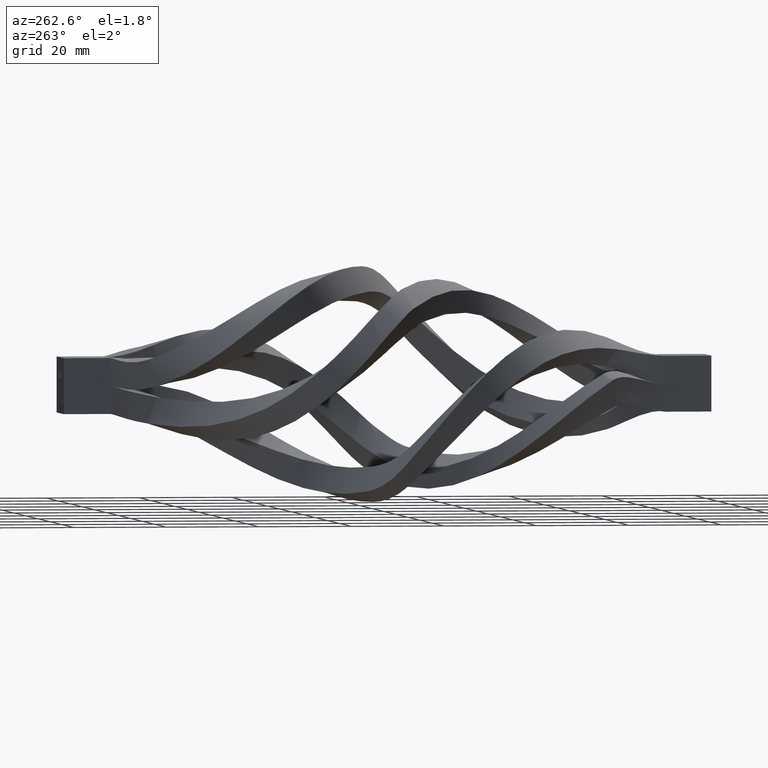
[diagram: clean part render]
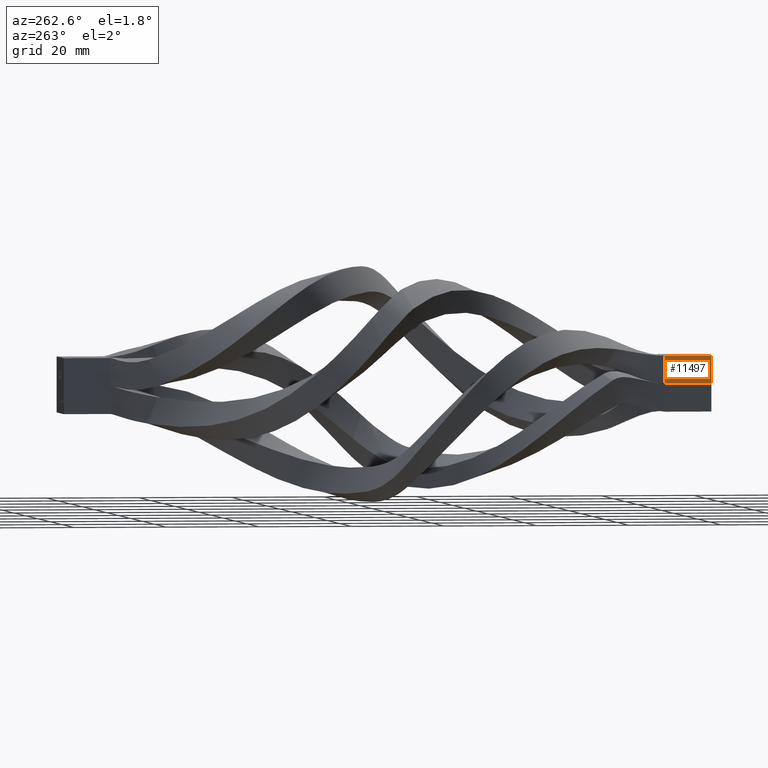
[diagram: same view with one face highlighted and labeled with its STEP entity id]
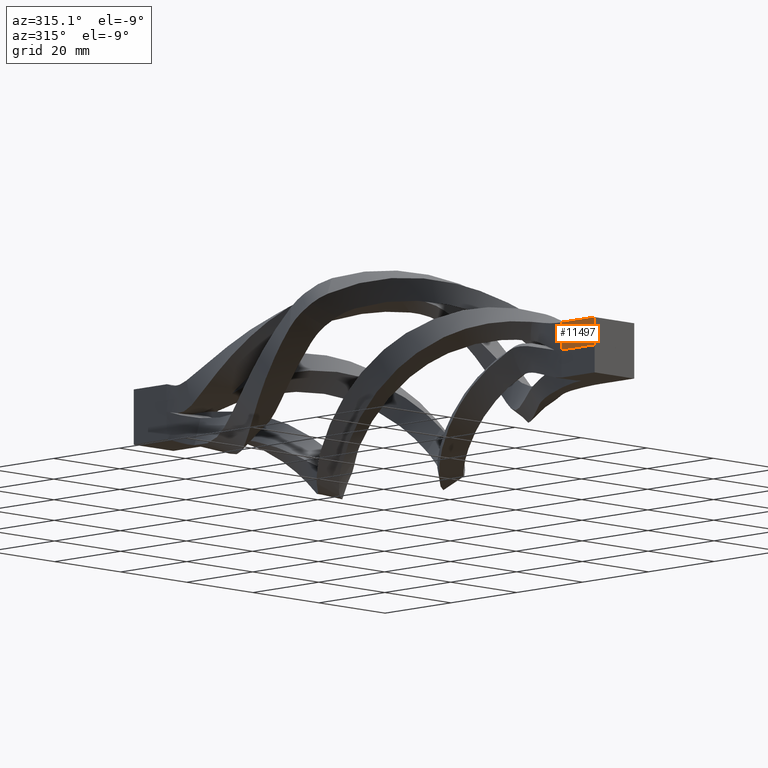
[diagram: same view with one face highlighted and labeled with its STEP entity id]
A machine part, auxiliary view. The second image highlights one B-rep face of the part: STEP entity #11497.
A second angle (auxiliary view) of the same face is appended — the face is thin or edge-on in the first view.
In plain terms, the highlighted planar face has unit normal (1, 0, -0).
Its self-contained STEP definition (entity closure, byte-faithful):
#31 = DIRECTION ( 'NONE',  ( -1.047444401652940007E-14, 0.000000000000000000, -1.000000000000000000 ) ) ;
#47 = LINE ( 'NONE', #1835, #13388 ) ;
#633 = DIRECTION ( 'NONE',  ( -1.047444401652940007E-14, 0.000000000000000000, -1.000000000000000000 ) ) ;
#781 = LINE ( 'NONE', #4283, #11883 ) ;
#1015 = EDGE_LOOP ( 'NONE', ( #13542, #7526, #16187, #12878 ) ) ;
#1099 = CARTESIAN_POINT ( 'NONE',  ( -5.999999999999937828, -69.99999999999998579, 6.000000000000063061 ) ) ;
#1356 = CARTESIAN_POINT ( 'NONE',  ( -5.999999999999937828, -69.99999999999998579, 6.000000000000063061 ) ) ;
#1471 = EDGE_CURVE ( 'NONE', #6770, #13617, #9305, .T. ) ;
#1835 = CARTESIAN_POINT ( 'NONE',  ( -6.000000000000000000, -69.99999999999998579, 6.358145217866481128E-14 ) ) ;
#1840 = CARTESIAN_POINT ( 'NONE',  ( -5.999999999999937828, -69.99999999999998579, 6.000000000000063061 ) ) ;
#3364 = VECTOR ( 'NONE', #31, 1000.000000000000000 ) ;
#4283 = CARTESIAN_POINT ( 'NONE',  ( -5.999999999999937828, -60.00000000000000000, 6.000000000000063061 ) ) ;
#5104 = LINE ( 'NONE', #15444, #12466 ) ;
#5557 = CARTESIAN_POINT ( 'NONE',  ( -6.000000000000000000, -60.00000000000000000, 6.358145217866481128E-14 ) ) ;
#6770 = VERTEX_POINT ( 'NONE', #1356 ) ;
#7307 = DIRECTION ( 'NONE',  ( 0.000000000000000000, 1.000000000000000000, 0.000000000000000000 ) ) ;
#7526 = ORIENTED_EDGE ( 'NONE', *, *, #10055, .F. ) ;
#7663 = FACE_OUTER_BOUND ( 'NONE', #1015, .T. ) ;
#9305 = LINE ( 'NONE', #1099, #3364 ) ;
#9705 = EDGE_CURVE ( 'NONE', #6770, #15091, #5104, .T. ) ;
#10055 = EDGE_CURVE ( 'NONE', #13617, #15230, #47, .T. ) ;
#10742 = CARTESIAN_POINT ( 'NONE',  ( -6.000000000000000000, -69.99999999999998579, 6.358145217866481128E-14 ) ) ;
#11497 = ADVANCED_FACE ( 'NONE', ( #7663 ), #16358, .F. ) ;
#11676 = CARTESIAN_POINT ( 'NONE',  ( -5.999999999999937828, -60.00000000000000000, 6.000000000000063061 ) ) ;
#11883 = VECTOR ( 'NONE', #16241, 1000.000000000000000 ) ;
#12221 = DIRECTION ( 'NONE',  ( 1.000000000000000000, 0.000000000000000000, -1.047444401652940007E-14 ) ) ;
#12466 = VECTOR ( 'NONE', #12751, 1000.000000000000000 ) ;
#12751 = DIRECTION ( 'NONE',  ( 0.000000000000000000, 1.000000000000000000, 0.000000000000000000 ) ) ;
#12878 = ORIENTED_EDGE ( 'NONE', *, *, #9705, .T. ) ;
#13388 = VECTOR ( 'NONE', #7307, 1000.000000000000000 ) ;
#13542 = ORIENTED_EDGE ( 'NONE', *, *, #16433, .T. ) ;
#13617 = VERTEX_POINT ( 'NONE', #10742 ) ;
#15091 = VERTEX_POINT ( 'NONE', #11676 ) ;
#15230 = VERTEX_POINT ( 'NONE', #5557 ) ;
#15444 = CARTESIAN_POINT ( 'NONE',  ( -5.999999999999937828, -69.99999999999998579, 6.000000000000063061 ) ) ;
#15729 = AXIS2_PLACEMENT_3D ( 'NONE', #1840, #12221, #633 ) ;
#16187 = ORIENTED_EDGE ( 'NONE', *, *, #1471, .F. ) ;
#16241 = DIRECTION ( 'NONE',  ( -1.047444401652940007E-14, 0.000000000000000000, -1.000000000000000000 ) ) ;
#16358 = PLANE ( 'NONE',  #15729 ) ;
#16433 = EDGE_CURVE ( 'NONE', #15091, #15230, #781, .T. ) ;